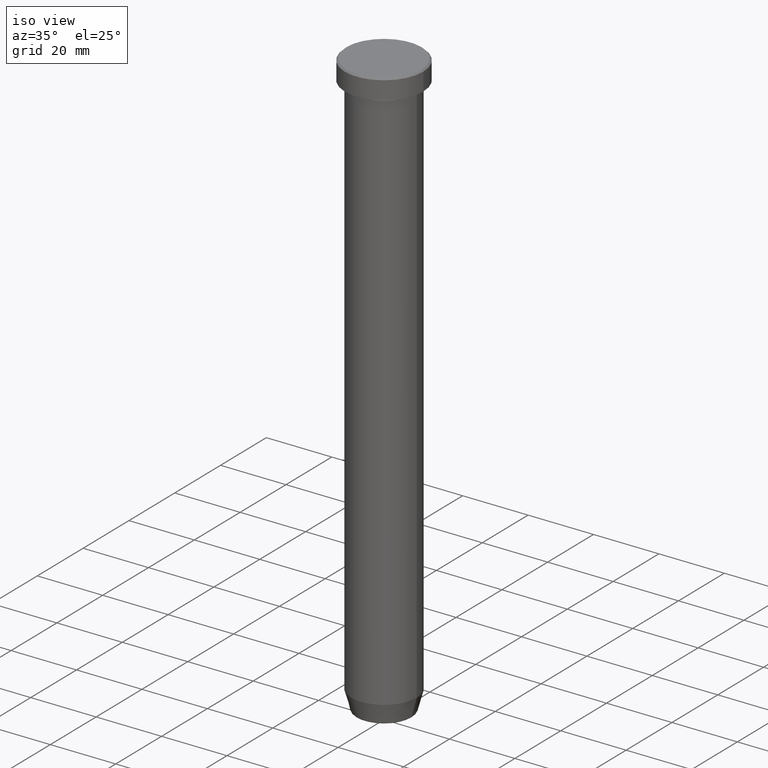
[diagram: clean part render]
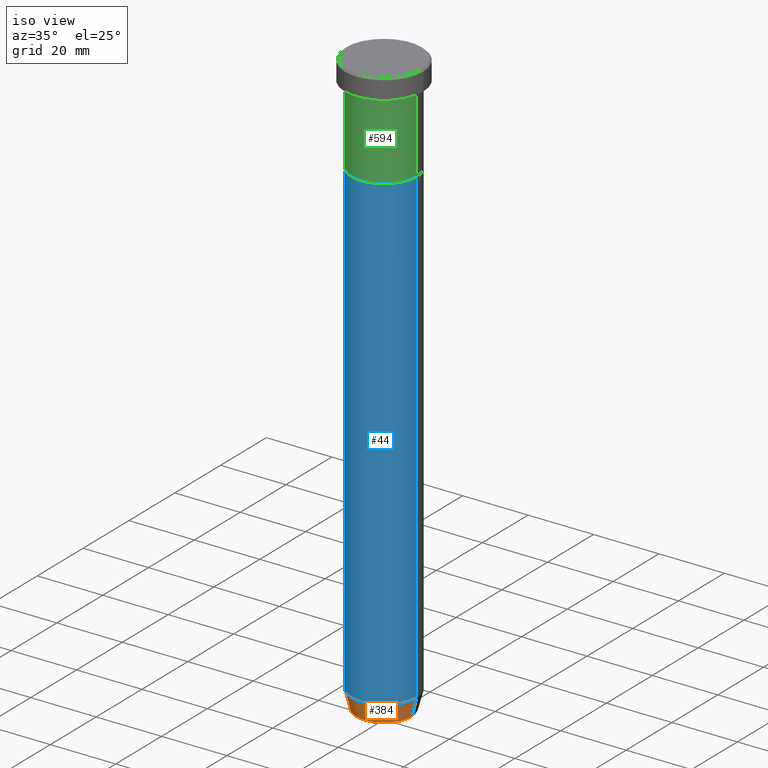
[diagram: same view with three faces highlighted in distinct colors, each labeled with its STEP entity id]
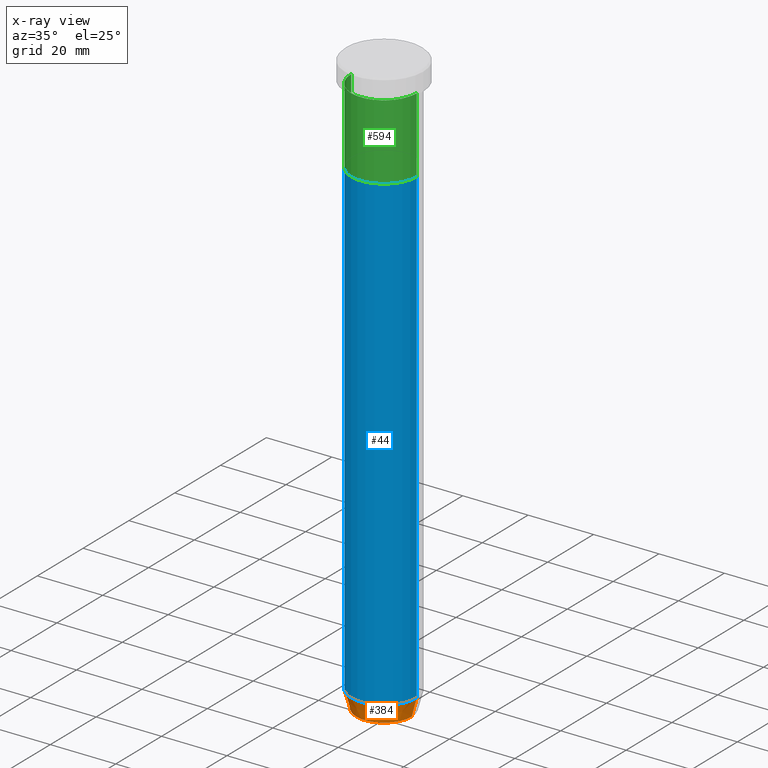
[diagram: x-ray of the same camera — body ghosted, the three highlighted faces saturated]
A machine part, iso view with three faces highlighted in distinct colors.
The next image is the same camera in x-ray (body ghosted, the three faces saturated) — at least one of them is partly hidden behind the body in this view.
Their STEP definitions:

[orange] entity #384 — the highlighted conical surface has half-angle 15 deg.
#11 = LINE ( 'NONE', #521, #52 ) ;
#13 = DIRECTION ( 'NONE',  ( -0.2588190451025209060, 3.169619151431766790E-17, 0.9659258262890682012 ) ) ;
#52 = VECTOR ( 'NONE', #98, 1000.000000000000000 ) ;
#69 = DIRECTION ( 'NONE',  ( -0.000000000000000000, -0.000000000000000000, 1.000000000000000000 ) ) ;
#75 = DIRECTION ( 'NONE',  ( 1.000000000000000000, 0.000000000000000000, 0.000000000000000000 ) ) ;
#98 = DIRECTION ( 'NONE',  ( 0.2588190451025209060, 0.000000000000000000, 0.9659258262890682012 ) ) ;
#105 = CIRCLE ( 'NONE', #514, 9.999999999999998224 ) ;
#145 = DIRECTION ( 'NONE',  ( -1.000000000000000000, 0.000000000000000000, 0.000000000000000000 ) ) ;
#163 = VERTEX_POINT ( 'NONE', #301 ) ;
#165 = AXIS2_PLACEMENT_3D ( 'NONE', #425, #414, #145 ) ;
#167 = ORIENTED_EDGE ( 'NONE', *, *, #403, .F. ) ;
#168 = ORIENTED_EDGE ( 'NONE', *, *, #273, .T. ) ;
#201 = VERTEX_POINT ( 'NONE', #454 ) ;
#207 = VERTEX_POINT ( 'NONE', #546 ) ;
#217 = CARTESIAN_POINT ( 'NONE',  ( 0.000000000000000000, 0.000000000000000000, -174.0000000000000000 ) ) ;
#218 = ORIENTED_EDGE ( 'NONE', *, *, #560, .F. ) ;
#221 = EDGE_CURVE ( 'NONE', #201, #494, #244, .T. ) ;
#228 = CARTESIAN_POINT ( 'NONE',  ( 8.491604264568307414, 0.000000000000000000, -179.6294095225512706 ) ) ;
#244 = CIRCLE ( 'NONE', #165, 8.491604264568307414 ) ;
#256 = CONICAL_SURFACE ( 'NONE', #357, 8.392304845413260495, 0.2617993877991495744 ) ;
#273 = EDGE_CURVE ( 'NONE', #494, #207, #11, .T. ) ;
#297 = ORIENTED_EDGE ( 'NONE', *, *, #221, .T. ) ;
#301 = CARTESIAN_POINT ( 'NONE',  ( -9.999999999999998224, 1.224646799147353059E-15, -174.0000000000000000 ) ) ;
#339 = DIRECTION ( 'NONE',  ( 1.000000000000000000, 0.000000000000000000, 0.000000000000000000 ) ) ;
#357 = AXIS2_PLACEMENT_3D ( 'NONE', #444, #589, #339 ) ;
#360 = LINE ( 'NONE', #557, #575 ) ;
#384 = ADVANCED_FACE ( 'NONE', ( #395 ), #256, .T. ) ;
#385 = EDGE_LOOP ( 'NONE', ( #218, #297, #168, #167 ) ) ;
#395 = FACE_OUTER_BOUND ( 'NONE', #385, .T. ) ;
#403 = EDGE_CURVE ( 'NONE', #163, #207, #105, .T. ) ;
#414 = DIRECTION ( 'NONE',  ( -0.000000000000000000, -0.000000000000000000, 1.000000000000000000 ) ) ;
#425 = CARTESIAN_POINT ( 'NONE',  ( 0.000000000000000000, 0.000000000000000000, -179.6294095225512706 ) ) ;
#444 = CARTESIAN_POINT ( 'NONE',  ( 0.000000000000000000, 0.000000000000000000, -180.0000000000000000 ) ) ;
#454 = CARTESIAN_POINT ( 'NONE',  ( -8.491604264568307414, 1.132284198685156387E-15, -179.6294095225512706 ) ) ;
#494 = VERTEX_POINT ( 'NONE', #228 ) ;
#514 = AXIS2_PLACEMENT_3D ( 'NONE', #217, #69, #75 ) ;
#521 = CARTESIAN_POINT ( 'NONE',  ( 8.392304845413260495, 0.000000000000000000, -180.0000000000000000 ) ) ;
#546 = CARTESIAN_POINT ( 'NONE',  ( 9.999999999999998224, 0.000000000000000000, -174.0000000000000000 ) ) ;
#557 = CARTESIAN_POINT ( 'NONE',  ( -8.392304845413260495, 1.027760926640417114E-15, -180.0000000000000000 ) ) ;
#560 = EDGE_CURVE ( 'NONE', #201, #163, #360, .T. ) ;
#575 = VECTOR ( 'NONE', #13, 1000.000000000000000 ) ;
#589 = DIRECTION ( 'NONE',  ( -0.000000000000000000, -0.000000000000000000, 1.000000000000000000 ) ) ;

[blue] entity #44 — the highlighted cylindrical surface (partial cylindrical patch) has radius 10 mm, axis along (-0, -0, 1).
#20 = EDGE_CURVE ( 'NONE', #353, #210, #567, .T. ) ;
#44 = ADVANCED_FACE ( 'NONE', ( #476 ), #283, .T. ) ;
#60 = DIRECTION ( 'NONE',  ( -0.000000000000000000, -0.000000000000000000, 1.000000000000000000 ) ) ;
#69 = DIRECTION ( 'NONE',  ( -0.000000000000000000, -0.000000000000000000, 1.000000000000000000 ) ) ;
#75 = DIRECTION ( 'NONE',  ( 1.000000000000000000, 0.000000000000000000, 0.000000000000000000 ) ) ;
#86 = DIRECTION ( 'NONE',  ( 1.000000000000000000, 0.000000000000000000, 0.000000000000000000 ) ) ;
#102 = CARTESIAN_POINT ( 'NONE',  ( 0.000000000000000000, 0.000000000000000000, 0.000000000000000000 ) ) ;
#105 = CIRCLE ( 'NONE', #514, 9.999999999999998224 ) ;
#109 = AXIS2_PLACEMENT_3D ( 'NONE', #102, #60, #527 ) ;
#115 = EDGE_CURVE ( 'NONE', #207, #210, #550, .T. ) ;
#132 = ORIENTED_EDGE ( 'NONE', *, *, #415, .F. ) ;
#163 = VERTEX_POINT ( 'NONE', #301 ) ;
#173 = CARTESIAN_POINT ( 'NONE',  ( -9.999999999999998224, 1.224646799147353059E-15, 0.000000000000000000 ) ) ;
#178 = CARTESIAN_POINT ( 'NONE',  ( 0.000000000000000000, 0.000000000000000000, -30.00000000000000000 ) ) ;
#189 = ORIENTED_EDGE ( 'NONE', *, *, #403, .T. ) ;
#207 = VERTEX_POINT ( 'NONE', #546 ) ;
#208 = EDGE_LOOP ( 'NONE', ( #132, #189, #393, #254 ) ) ;
#210 = VERTEX_POINT ( 'NONE', #284 ) ;
#217 = CARTESIAN_POINT ( 'NONE',  ( 0.000000000000000000, 0.000000000000000000, -174.0000000000000000 ) ) ;
#240 = VECTOR ( 'NONE', #354, 1000.000000000000000 ) ;
#254 = ORIENTED_EDGE ( 'NONE', *, *, #20, .F. ) ;
#283 = CYLINDRICAL_SURFACE ( 'NONE', #109, 9.999999999999998224 ) ;
#284 = CARTESIAN_POINT ( 'NONE',  ( 10.00000000000000000, 0.000000000000000000, -30.00000000000000000 ) ) ;
#300 = VECTOR ( 'NONE', #366, 1000.000000000000000 ) ;
#301 = CARTESIAN_POINT ( 'NONE',  ( -9.999999999999998224, 1.224646799147353059E-15, -174.0000000000000000 ) ) ;
#353 = VERTEX_POINT ( 'NONE', #534 ) ;
#354 = DIRECTION ( 'NONE',  ( -0.000000000000000000, -0.000000000000000000, 1.000000000000000000 ) ) ;
#364 = CARTESIAN_POINT ( 'NONE',  ( 9.999999999999998224, 0.000000000000000000, 0.000000000000000000 ) ) ;
#366 = DIRECTION ( 'NONE',  ( -0.000000000000000000, -0.000000000000000000, 1.000000000000000000 ) ) ;
#393 = ORIENTED_EDGE ( 'NONE', *, *, #115, .T. ) ;
#403 = EDGE_CURVE ( 'NONE', #163, #207, #105, .T. ) ;
#415 = EDGE_CURVE ( 'NONE', #163, #353, #542, .T. ) ;
#468 = AXIS2_PLACEMENT_3D ( 'NONE', #178, #507, #86 ) ;
#476 = FACE_OUTER_BOUND ( 'NONE', #208, .T. ) ;
#507 = DIRECTION ( 'NONE',  ( -0.000000000000000000, -0.000000000000000000, 1.000000000000000000 ) ) ;
#514 = AXIS2_PLACEMENT_3D ( 'NONE', #217, #69, #75 ) ;
#527 = DIRECTION ( 'NONE',  ( 1.000000000000000000, 0.000000000000000000, 0.000000000000000000 ) ) ;
#534 = CARTESIAN_POINT ( 'NONE',  ( -10.00000000000000000, 1.224646799147353256E-15, -30.00000000000000000 ) ) ;
#542 = LINE ( 'NONE', #173, #240 ) ;
#546 = CARTESIAN_POINT ( 'NONE',  ( 9.999999999999998224, 0.000000000000000000, -174.0000000000000000 ) ) ;
#550 = LINE ( 'NONE', #364, #300 ) ;
#567 = CIRCLE ( 'NONE', #468, 10.00000000000000000 ) ;

[green] entity #594 — the highlighted cylindrical surface (partial cylindrical patch) has radius 10 mm, axis along (-0, -0, 1).
#15 = DIRECTION ( 'NONE',  ( 1.000000000000000000, 0.000000000000000000, 0.000000000000000000 ) ) ;
#16 = VECTOR ( 'NONE', #281, 1000.000000000000000 ) ;
#18 = CARTESIAN_POINT ( 'NONE',  ( 0.000000000000000000, 0.000000000000000000, -6.999999999999999112 ) ) ;
#76 = ORIENTED_EDGE ( 'NONE', *, *, #280, .T. ) ;
#120 = VERTEX_POINT ( 'NONE', #259 ) ;
#125 = ORIENTED_EDGE ( 'NONE', *, *, #181, .F. ) ;
#149 = LINE ( 'NONE', #564, #16 ) ;
#151 = CYLINDRICAL_SURFACE ( 'NONE', #383, 10.00000000000000000 ) ;
#152 = CIRCLE ( 'NONE', #487, 10.00000000000000000 ) ;
#181 = EDGE_CURVE ( 'NONE', #120, #443, #452, .T. ) ;
#212 = EDGE_CURVE ( 'NONE', #532, #355, #149, .T. ) ;
#230 = CIRCLE ( 'NONE', #344, 10.00000000000000000 ) ;
#235 = EDGE_CURVE ( 'NONE', #443, #355, #230, .T. ) ;
#258 = CARTESIAN_POINT ( 'NONE',  ( 10.00000000000000000, 0.000000000000000000, -6.999999999999999112 ) ) ;
#259 = CARTESIAN_POINT ( 'NONE',  ( -10.00000000000000000, 1.224646799147353256E-15, -30.00000000000000000 ) ) ;
#267 = VECTOR ( 'NONE', #460, 1000.000000000000000 ) ;
#280 = EDGE_CURVE ( 'NONE', #120, #532, #152, .T. ) ;
#281 = DIRECTION ( 'NONE',  ( -0.000000000000000000, -0.000000000000000000, 1.000000000000000000 ) ) ;
#296 = DIRECTION ( 'NONE',  ( -0.000000000000000000, -0.000000000000000000, 1.000000000000000000 ) ) ;
#344 = AXIS2_PLACEMENT_3D ( 'NONE', #18, #421, #15 ) ;
#346 = CARTESIAN_POINT ( 'NONE',  ( -10.00000000000000000, 1.224646799147353256E-15, -6.999999999999999112 ) ) ;
#355 = VERTEX_POINT ( 'NONE', #258 ) ;
#383 = AXIS2_PLACEMENT_3D ( 'NONE', #392, #296, #418 ) ;
#392 = CARTESIAN_POINT ( 'NONE',  ( 0.000000000000000000, 0.000000000000000000, 0.000000000000000000 ) ) ;
#410 = CARTESIAN_POINT ( 'NONE',  ( 0.000000000000000000, 0.000000000000000000, -30.00000000000000000 ) ) ;
#418 = DIRECTION ( 'NONE',  ( 1.000000000000000000, 0.000000000000000000, 0.000000000000000000 ) ) ;
#421 = DIRECTION ( 'NONE',  ( -0.000000000000000000, -0.000000000000000000, 1.000000000000000000 ) ) ;
#429 = EDGE_LOOP ( 'NONE', ( #125, #76, #587, #463 ) ) ;
#443 = VERTEX_POINT ( 'NONE', #346 ) ;
#452 = LINE ( 'NONE', #556, #267 ) ;
#460 = DIRECTION ( 'NONE',  ( -0.000000000000000000, -0.000000000000000000, 1.000000000000000000 ) ) ;
#463 = ORIENTED_EDGE ( 'NONE', *, *, #235, .F. ) ;
#471 = DIRECTION ( 'NONE',  ( -0.000000000000000000, -0.000000000000000000, 1.000000000000000000 ) ) ;
#487 = AXIS2_PLACEMENT_3D ( 'NONE', #410, #471, #570 ) ;
#529 = FACE_OUTER_BOUND ( 'NONE', #429, .T. ) ;
#532 = VERTEX_POINT ( 'NONE', #551 ) ;
#551 = CARTESIAN_POINT ( 'NONE',  ( 10.00000000000000000, 0.000000000000000000, -30.00000000000000000 ) ) ;
#556 = CARTESIAN_POINT ( 'NONE',  ( -10.00000000000000000, 1.224646799147353256E-15, 0.000000000000000000 ) ) ;
#564 = CARTESIAN_POINT ( 'NONE',  ( 10.00000000000000000, 0.000000000000000000, 0.000000000000000000 ) ) ;
#570 = DIRECTION ( 'NONE',  ( 1.000000000000000000, 0.000000000000000000, 0.000000000000000000 ) ) ;
#587 = ORIENTED_EDGE ( 'NONE', *, *, #212, .T. ) ;
#594 = ADVANCED_FACE ( 'NONE', ( #529 ), #151, .T. ) ;